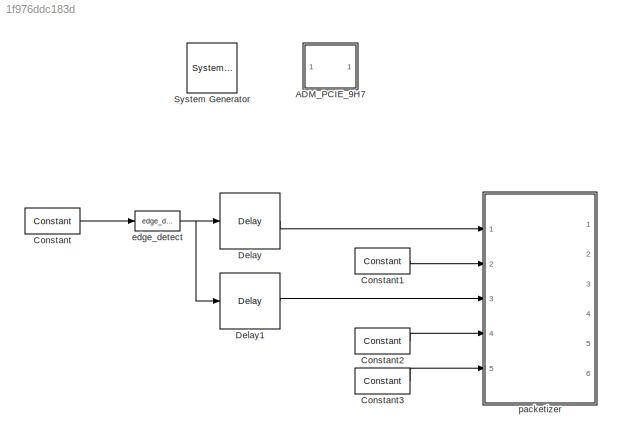
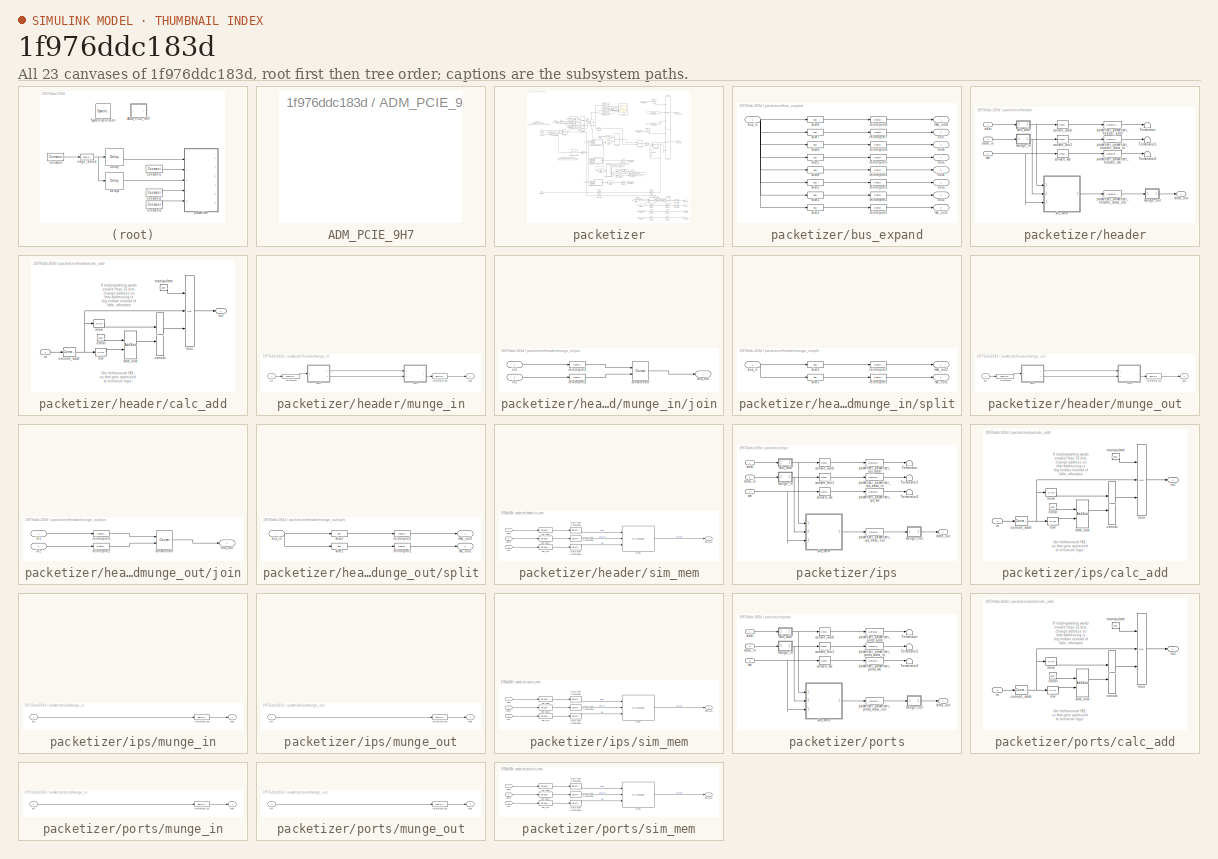
[diagram: thumbnail index - all 23 canvases of the model, root first then tree order]
MODEL slx_1f976ddc183d
KIND model
CONFIG AbsTol = auto
CONFIG EnableMultiTasking = off
CONFIG FixedStep = auto
CONFIG MaxStep = auto
CONFIG MinStep = auto
CONFIG RelTol = 1e-3
CONFIG SampleTimeConstraint = Unconstrained
CONFIG Solver = VariableStepAuto
CONFIG SolverName = VariableStepAuto
CONFIG StartTime = 0.0
CONFIG StopTime = 10000
BLOCK [Reference]  System Generator  REF=xbsIndex_r4/ System Generator
  AttributesFormatString = System\nGenerator
  Ports = []
  SourceBlock = xbsIndex_r4/ System Generator
  SourceType = Xilinx System Generator Block
  Tag = genX
  UserDataPersistent = on
BLOCK [SubSystem] ADM_PCIE_9H7
  Ports = []
  RequestExecContextInheritance = off
  Tag = xps:xsg
BLOCK [Reference] Constant  REF=xbsIndex_r4/Constant
  Ports = [0, 1]
  SourceBlock = xbsIndex_r4/Constant
  SourceType = Xilinx Constant Block Block
BLOCK [Reference] Constant1  REF=xbsIndex_r4/Constant
  Ports = [0, 1]
  SourceBlock = xbsIndex_r4/Constant
  SourceType = Xilinx Constant Block Block
BLOCK [Reference] Constant2  REF=xbsIndex_r4/Constant
  Ports = [0, 1]
  SourceBlock = xbsIndex_r4/Constant
  SourceType = Xilinx Constant Block Block
BLOCK [Reference] Constant3  REF=xbsIndex_r4/Constant
  Ports = [0, 1]
  SourceBlock = xbsIndex_r4/Constant
  SourceType = Xilinx Constant Block Block
BLOCK [Reference] Delay  REF=xbsIndex_r4/Delay
  Ports = [1, 1]
  SourceBlock = xbsIndex_r4/Delay
  SourceType = Xilinx Delay Block
BLOCK [Reference] Delay1  REF=xbsIndex_r4/Delay
  Ports = [1, 1]
  SourceBlock = xbsIndex_r4/Delay
  SourceType = Xilinx Delay Block
BLOCK [Reference] edge_detect  REF=casper_library_misc/edge_detect  (lib defined in mdl_357510c33b49, mdl_57b5f564ae26, +4 more)
  AttributesFormatString = rising edges\nactive high
  Ports = [1, 1]
  SourceBlock = casper_library_misc/edge_detect
  SourceProductName = CASPER DSP Blockset
  SourceType = edge_detect
  UserDataPersistent = on
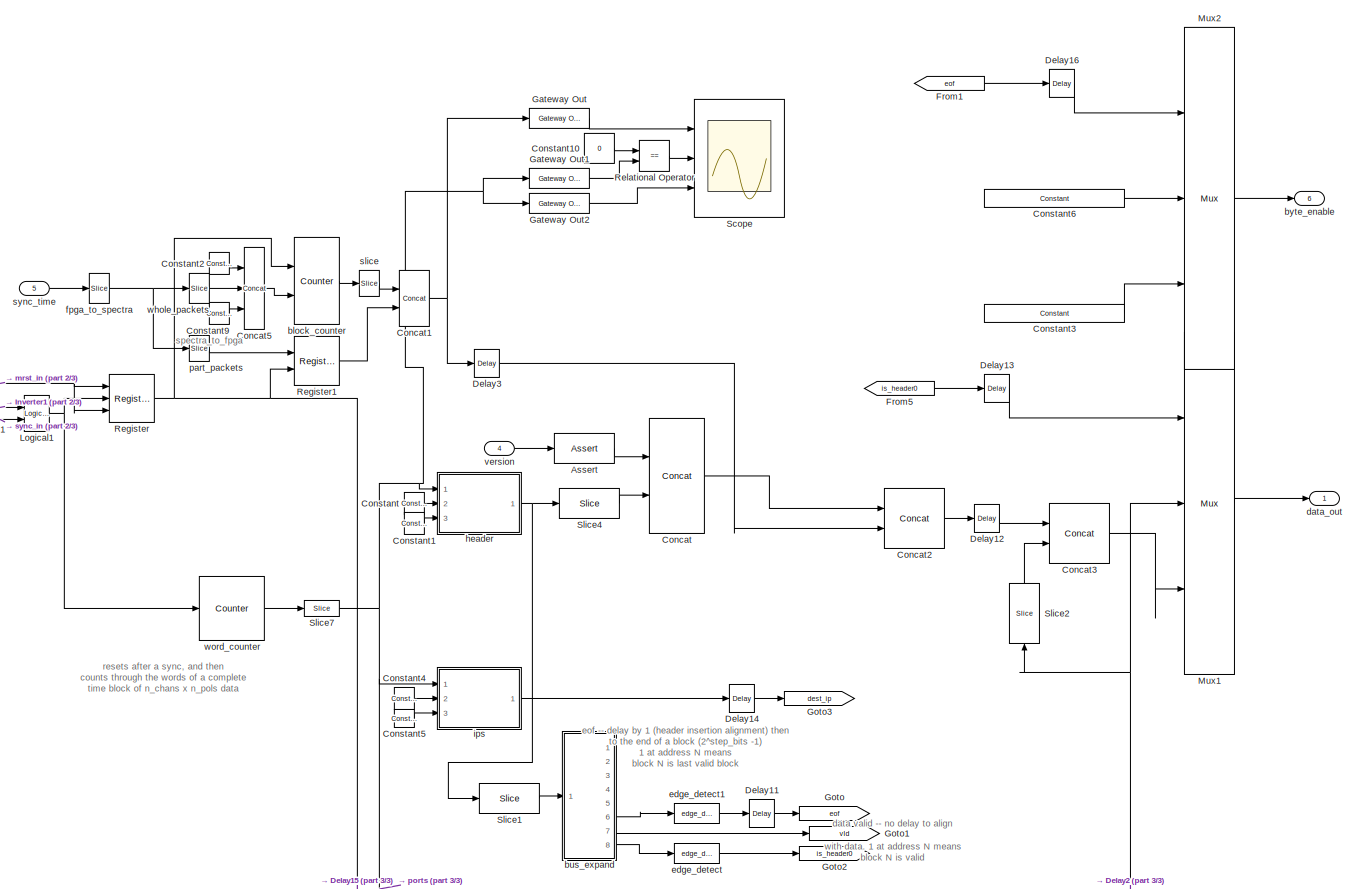
[diagram: packetizer - part 1/3, full width, middle band]
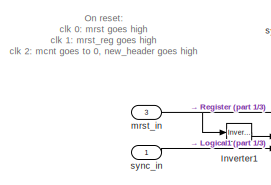
[diagram: packetizer - part 2/3, top left region]
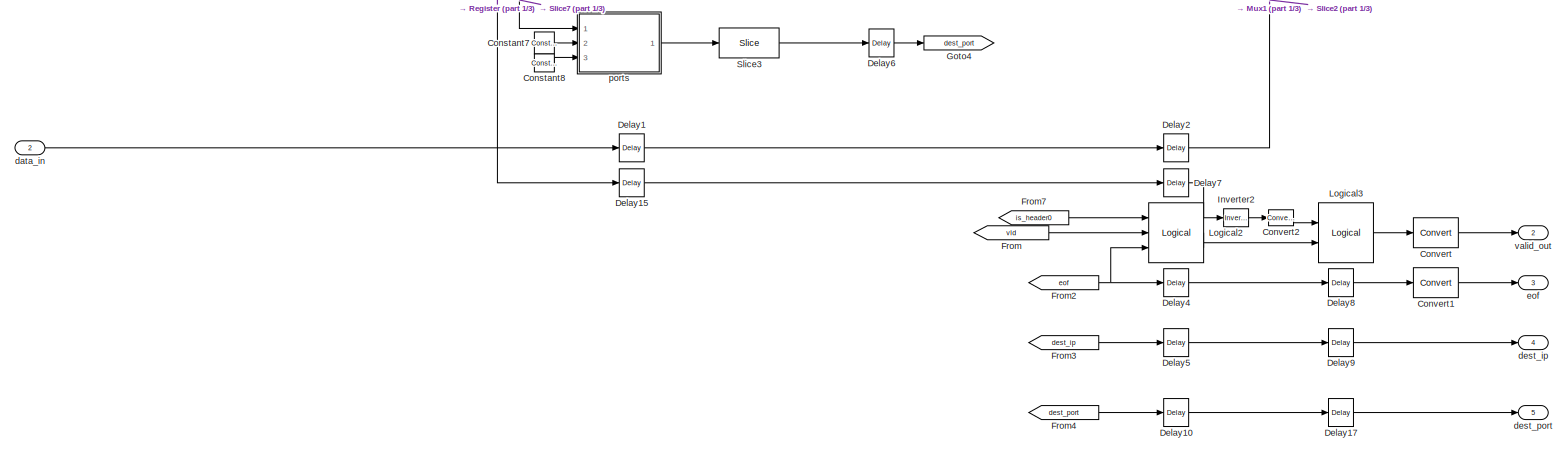
[diagram: packetizer - part 3/3, full width, bottom band]
BLOCK [SubSystem] packetizer
  Ports = [5, 6]
  RequestExecContextInheritance = off
BLOCK [Reference] packetizer/Assert  REF=xbsIndex_r4/Assert
  Ports = [1, 1]
  SourceBlock = xbsIndex_r4/Assert
  SourceType = Xilinx Assert Block
BLOCK [Reference] packetizer/Concat  REF=xbsIndex_r4/Concat
  Ports = [2, 1]
  SourceBlock = xbsIndex_r4/Concat
  SourceType = Xilinx Bus Concatenator Block
BLOCK [Reference] packetizer/Concat1  REF=xbsIndex_r4/Concat
  Ports = [2, 1]
  SourceBlock = xbsIndex_r4/Concat
  SourceType = Xilinx Bus Concatenator Block
BLOCK [Reference] packetizer/Concat2  REF=xbsIndex_r4/Concat
  Ports = [2, 1]
  SourceBlock = xbsIndex_r4/Concat
  SourceType = Xilinx Bus Concatenator Block
BLOCK [Reference] packetizer/Concat3  REF=xbsIndex_r4/Concat
  Ports = [2, 1]
  SourceBlock = xbsIndex_r4/Concat
  SourceType = Xilinx Bus Concatenator Block
BLOCK [Reference] packetizer/Concat5  REF=xbsIndex_r4/Concat
  Ports = [3, 1]
  SourceBlock = xbsIndex_r4/Concat
  SourceType = Xilinx Bus Concatenator Block
BLOCK [Reference] packetizer/Constant  REF=xbsIndex_r4/Constant
  Ports = [0, 1]
  SourceBlock = xbsIndex_r4/Constant
  SourceType = Xilinx Constant Block Block
BLOCK [Reference] packetizer/Constant1  REF=xbsIndex_r4/Constant
  Ports = [0, 1]
  SourceBlock = xbsIndex_r4/Constant
  SourceType = Xilinx Constant Block Block
BLOCK [Constant] packetizer/Constant10
  Value = 0
BLOCK [Reference] packetizer/Constant2  REF=xbsIndex_r4/Constant
  Ports = [0, 1]
  SourceBlock = xbsIndex_r4/Constant
  SourceType = Xilinx Constant Block Block
BLOCK [Reference] packetizer/Constant3  REF=xbsIndex_r4/Constant
  Ports = [0, 1]
  SourceBlock = xbsIndex_r4/Constant
  SourceType = Xilinx Constant Block Block
BLOCK [Reference] packetizer/Constant4  REF=xbsIndex_r4/Constant
  Ports = [0, 1]
  SourceBlock = xbsIndex_r4/Constant
  SourceType = Xilinx Constant Block Block
BLOCK [Reference] packetizer/Constant5  REF=xbsIndex_r4/Constant
  Ports = [0, 1]
  SourceBlock = xbsIndex_r4/Constant
  SourceType = Xilinx Constant Block Block
BLOCK [Reference] packetizer/Constant6  REF=xbsIndex_r4/Constant
  Ports = [0, 1]
  SourceBlock = xbsIndex_r4/Constant
  SourceType = Xilinx Constant Block Block
BLOCK [Reference] packetizer/Constant7  REF=xbsIndex_r4/Constant
  Ports = [0, 1]
  SourceBlock = xbsIndex_r4/Constant
  SourceType = Xilinx Constant Block Block
BLOCK [Reference] packetizer/Constant8  REF=xbsIndex_r4/Constant
  Ports = [0, 1]
  SourceBlock = xbsIndex_r4/Constant
  SourceType = Xilinx Constant Block Block
BLOCK [Reference] packetizer/Constant9  REF=xbsIndex_r4/Constant
  Ports = [0, 1]
  SourceBlock = xbsIndex_r4/Constant
  SourceType = Xilinx Constant Block Block
BLOCK [Reference] packetizer/Convert  REF=xbsIndex_r4/Convert
  Ports = [1, 1]
  SourceBlock = xbsIndex_r4/Convert
  SourceType = Xilinx Type Converter Block
BLOCK [Reference] packetizer/Convert1  REF=xbsIndex_r4/Convert
  Ports = [1, 1]
  SourceBlock = xbsIndex_r4/Convert
  SourceType = Xilinx Type Converter Block
BLOCK [Reference] packetizer/Convert2  REF=xbsIndex_r4/Convert
  Ports = [1, 1]
  SourceBlock = xbsIndex_r4/Convert
  SourceType = Xilinx Type Converter Block
BLOCK [Reference] packetizer/Delay1  REF=xbsIndex_r4/Delay
  Ports = [1, 1]
  SourceBlock = xbsIndex_r4/Delay
  SourceType = Xilinx Delay Block
BLOCK [Reference] packetizer/Delay10  REF=xbsIndex_r4/Delay
  Ports = [1, 1]
  SourceBlock = xbsIndex_r4/Delay
  SourceType = Xilinx Delay Block
BLOCK [Reference] packetizer/Delay11  REF=xbsIndex_r4/Delay
  Ports = [1, 1]
  SourceBlock = xbsIndex_r4/Delay
  SourceType = Xilinx Delay Block
BLOCK [Reference] packetizer/Delay12  REF=xbsIndex_r4/Delay
  Ports = [1, 1]
  SourceBlock = xbsIndex_r4/Delay
  SourceType = Xilinx Delay Block
BLOCK [Reference] packetizer/Delay13  REF=xbsIndex_r4/Delay
  Ports = [1, 1]
  SourceBlock = xbsIndex_r4/Delay
  SourceType = Xilinx Delay Block
BLOCK [Reference] packetizer/Delay14  REF=xbsIndex_r4/Delay
  Ports = [1, 1]
  SourceBlock = xbsIndex_r4/Delay
  SourceType = Xilinx Delay Block
BLOCK [Reference] packetizer/Delay15  REF=xbsIndex_r4/Delay
  Ports = [1, 1]
  SourceBlock = xbsIndex_r4/Delay
  SourceType = Xilinx Delay Block
BLOCK [Reference] packetizer/Delay16  REF=xbsIndex_r4/Delay
  Ports = [1, 1]
  SourceBlock = xbsIndex_r4/Delay
  SourceType = Xilinx Delay Block
BLOCK [Reference] packetizer/Delay17  REF=xbsIndex_r4/Delay
  Ports = [1, 1]
  SourceBlock = xbsIndex_r4/Delay
  SourceType = Xilinx Delay Block
BLOCK [Reference] packetizer/Delay2  REF=xbsIndex_r4/Delay
  Ports = [1, 1]
  SourceBlock = xbsIndex_r4/Delay
  SourceType = Xilinx Delay Block
BLOCK [Reference] packetizer/Delay3  REF=xbsIndex_r4/Delay
  Ports = [1, 1]
  SourceBlock = xbsIndex_r4/Delay
  SourceType = Xilinx Delay Block
BLOCK [Reference] packetizer/Delay4  REF=xbsIndex_r4/Delay
  Ports = [1, 1]
  SourceBlock = xbsIndex_r4/Delay
  SourceType = Xilinx Delay Block
BLOCK [Reference] packetizer/Delay5  REF=xbsIndex_r4/Delay
  Ports = [1, 1]
  SourceBlock = xbsIndex_r4/Delay
  SourceType = Xilinx Delay Block
BLOCK [Reference] packetizer/Delay6  REF=xbsIndex_r4/Delay
  Ports = [1, 1]
  SourceBlock = xbsIndex_r4/Delay
  SourceType = Xilinx Delay Block
BLOCK [Reference] packetizer/Delay7  REF=xbsIndex_r4/Delay
  Ports = [1, 1]
  SourceBlock = xbsIndex_r4/Delay
  SourceType = Xilinx Delay Block
BLOCK [Reference] packetizer/Delay8  REF=xbsIndex_r4/Delay
  Ports = [1, 1]
  SourceBlock = xbsIndex_r4/Delay
  SourceType = Xilinx Delay Block
BLOCK [Reference] packetizer/Delay9  REF=xbsIndex_r4/Delay
  Ports = [1, 1]
  SourceBlock = xbsIndex_r4/Delay
  SourceType = Xilinx Delay Block
BLOCK [From] packetizer/From
  GotoTag = vld
BLOCK [From] packetizer/From1
  GotoTag = eof
BLOCK [From] packetizer/From2
  GotoTag = eof
BLOCK [From] packetizer/From3
  GotoTag = dest_ip
BLOCK [From] packetizer/From4
  GotoTag = dest_port
BLOCK [From] packetizer/From5
  GotoTag = is_header0
BLOCK [From] packetizer/From7
  GotoTag = is_header0
BLOCK [Reference] packetizer/Gateway Out  REF=xbsIndex_r4/Gateway Out
  Ports = [1, 1]
  SourceBlock = xbsIndex_r4/Gateway Out
  SourceType = Xilinx Gateway Out Block
BLOCK [Reference] packetizer/Gateway Out1  REF=xbsIndex_r4/Gateway Out
  Ports = [1, 1]
  SourceBlock = xbsIndex_r4/Gateway Out
  SourceType = Xilinx Gateway Out Block
BLOCK [Reference] packetizer/Gateway Out2  REF=xbsIndex_r4/Gateway Out
  Ports = [1, 1]
  SourceBlock = xbsIndex_r4/Gateway Out
  SourceType = Xilinx Gateway Out Block
BLOCK [Goto] packetizer/Goto
  GotoTag = eof
BLOCK [Goto] packetizer/Goto1
  GotoTag = vld
BLOCK [Goto] packetizer/Goto2
  GotoTag = is_header0
BLOCK [Goto] packetizer/Goto3
  GotoTag = dest_ip
BLOCK [Goto] packetizer/Goto4
  GotoTag = dest_port
BLOCK [Reference] packetizer/Inverter1  REF=xbsIndex_r4/Inverter
  Ports = [1, 1]
  SourceBlock = xbsIndex_r4/Inverter
  SourceType = Xilinx Inverter Block
BLOCK [Reference] packetizer/Inverter2  REF=xbsIndex_r4/Inverter
  Ports = [1, 1]
  SourceBlock = xbsIndex_r4/Inverter
  SourceType = Xilinx Inverter Block
BLOCK [Reference] packetizer/Logical1  REF=xbsIndex_r4/Logical
  Ports = [2, 1]
  SourceBlock = xbsIndex_r4/Logical
  SourceType = Xilinx Logical Block Block
BLOCK [Reference] packetizer/Logical2  REF=xbsIndex_r4/Logical
  Ports = [3, 1]
  SourceBlock = xbsIndex_r4/Logical
  SourceType = Xilinx Logical Block Block
BLOCK [Reference] packetizer/Logical3  REF=xbsIndex_r4/Logical
  Ports = [2, 1]
  SourceBlock = xbsIndex_r4/Logical
  SourceType = Xilinx Logical Block Block
BLOCK [Reference] packetizer/Mux1  REF=xbsIndex_r4/Mux
  Ports = [3, 1]
  SourceBlock = xbsIndex_r4/Mux
  SourceType = Xilinx Bus Multiplexer Block
BLOCK [Reference] packetizer/Mux2  REF=xbsIndex_r4/Mux
  Ports = [3, 1]
  SourceBlock = xbsIndex_r4/Mux
  SourceType = Xilinx Bus Multiplexer Block
BLOCK [Reference] packetizer/Register  REF=xbsIndex_r4/Register
  Ports = [3, 1]
  SourceBlock = xbsIndex_r4/Register
  SourceType = Xilinx Register Block
BLOCK [Reference] packetizer/Register1  REF=xbsIndex_r4/Register
  Ports = [2, 1]
  SourceBlock = xbsIndex_r4/Register
  SourceType = Xilinx Register Block
BLOCK [RelationalOperator] packetizer/Relational Operator
  InputSameDT = off
  Operator = ==
  OutDataTypeStr = boolean
  Ports = [2, 1]
  RndMeth = Simplest
  ZeroCross = off
BLOCK [Scope] packetizer/Scope
  Floating = off
  NumInputPorts = 3
  Ports = [3]
  ScopeSpecificationString = Simulink.scopes.TimeScopeBlockCfg('CurrentConfiguration', extmgr.ConfigurationSet(extmgr.Configuration('Core','General UI',true),extmgr.Configuration('Core','Source UI',true),extmgr.Configuration('Sources','WiredSimulink',true),extmgr.Configuration('Visuals','Time Domain',true,'SerializedDisplays',{struct('MinYLimReal','-10.00000','MaxYLimReal','90.00000','YLabelReal','','MinYLimMag','0.00000','Ma...<+2796ch>
BLOCK [Reference] packetizer/Slice1  REF=xbsIndex_r4/Slice
  Ports = [1, 1]
  SourceBlock = xbsIndex_r4/Slice
  SourceType = Xilinx Bit Slice Extractor Block
BLOCK [Reference] packetizer/Slice2  REF=xbsIndex_r4/Slice
  Ports = [1, 1]
  SourceBlock = xbsIndex_r4/Slice
  SourceType = Xilinx Bit Slice Extractor Block
BLOCK [Reference] packetizer/Slice3  REF=xbsIndex_r4/Slice
  Ports = [1, 1]
  SourceBlock = xbsIndex_r4/Slice
  SourceType = Xilinx Bit Slice Extractor Block
BLOCK [Reference] packetizer/Slice4  REF=xbsIndex_r4/Slice
  Ports = [1, 1]
  SourceBlock = xbsIndex_r4/Slice
  SourceType = Xilinx Bit Slice Extractor Block
BLOCK [Reference] packetizer/Slice7  REF=xbsIndex_r4/Slice
  Ports = [1, 1]
  SourceBlock = xbsIndex_r4/Slice
  SourceType = Xilinx Bit Slice Extractor Block
BLOCK [Reference] packetizer/block_counter  REF=xbsIndex_r4/Counter
  Ports = [2, 1]
  SourceBlock = xbsIndex_r4/Counter
  SourceType = Xilinx Counter Block
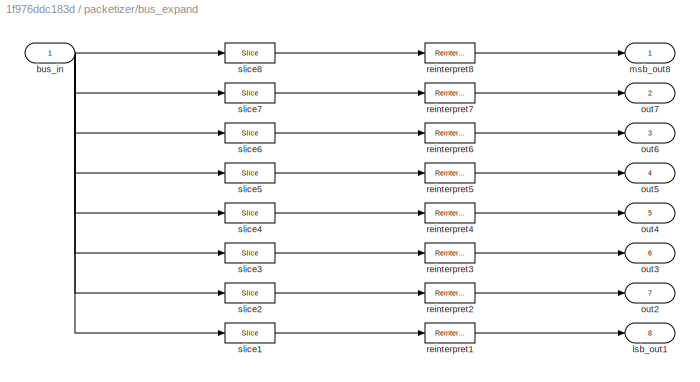
BLOCK [SubSystem] packetizer/bus_expand
  AncestorBlock = casper_library_flow_control/bus_expand
  AttributesFormatString = 8 outputs
  Ports = [1, 8]
  RequestExecContextInheritance = off
  UserDataPersistent = on
BLOCK [Inport] packetizer/bus_expand/bus_in
  IconDisplay = Port number
BLOCK [Outport] packetizer/bus_expand/lsb_out1
  IconDisplay = Port number
  Port = 8
BLOCK [Outport] packetizer/bus_expand/msb_out8
  IconDisplay = Port number
BLOCK [Outport] packetizer/bus_expand/out2
  IconDisplay = Port number
  Port = 7
BLOCK [Outport] packetizer/bus_expand/out3
  IconDisplay = Port number
  Port = 6
BLOCK [Outport] packetizer/bus_expand/out4
  IconDisplay = Port number
  Port = 5
BLOCK [Outport] packetizer/bus_expand/out5
  IconDisplay = Port number
  Port = 4
BLOCK [Outport] packetizer/bus_expand/out6
  IconDisplay = Port number
  Port = 3
BLOCK [Outport] packetizer/bus_expand/out7
  IconDisplay = Port number
  Port = 2
BLOCK [Reference] packetizer/bus_expand/reinterpret1  REF=xbsIndex_r4/Reinterpret
  Ports = [1, 1]
  SourceBlock = xbsIndex_r4/Reinterpret
  SourceType = Xilinx Type Reinterpreter Block
BLOCK [Reference] packetizer/bus_expand/reinterpret2  REF=xbsIndex_r4/Reinterpret
  Ports = [1, 1]
  SourceBlock = xbsIndex_r4/Reinterpret
  SourceType = Xilinx Type Reinterpreter Block
BLOCK [Reference] packetizer/bus_expand/reinterpret3  REF=xbsIndex_r4/Reinterpret
  Ports = [1, 1]
  SourceBlock = xbsIndex_r4/Reinterpret
  SourceType = Xilinx Type Reinterpreter Block
BLOCK [Reference] packetizer/bus_expand/reinterpret4  REF=xbsIndex_r4/Reinterpret
  Ports = [1, 1]
  SourceBlock = xbsIndex_r4/Reinterpret
  SourceType = Xilinx Type Reinterpreter Block
BLOCK [Reference] packetizer/bus_expand/reinterpret5  REF=xbsIndex_r4/Reinterpret
  Ports = [1, 1]
  SourceBlock = xbsIndex_r4/Reinterpret
  SourceType = Xilinx Type Reinterpreter Block
BLOCK [Reference] packetizer/bus_expand/reinterpret6  REF=xbsIndex_r4/Reinterpret
  Ports = [1, 1]
  SourceBlock = xbsIndex_r4/Reinterpret
  SourceType = Xilinx Type Reinterpreter Block
BLOCK [Reference] packetizer/bus_expand/reinterpret7  REF=xbsIndex_r4/Reinterpret
  Ports = [1, 1]
  SourceBlock = xbsIndex_r4/Reinterpret
  SourceType = Xilinx Type Reinterpreter Block
BLOCK [Reference] packetizer/bus_expand/reinterpret8  REF=xbsIndex_r4/Reinterpret
  Ports = [1, 1]
  SourceBlock = xbsIndex_r4/Reinterpret
  SourceType = Xilinx Type Reinterpreter Block
BLOCK [Reference] packetizer/bus_expand/slice1  REF=xbsIndex_r4/Slice
  Ports = [1, 1]
  SourceBlock = xbsIndex_r4/Slice
  SourceType = Xilinx Bit Slice Extractor Block
BLOCK [Reference] packetizer/bus_expand/slice2  REF=xbsIndex_r4/Slice
  Ports = [1, 1]
  SourceBlock = xbsIndex_r4/Slice
  SourceType = Xilinx Bit Slice Extractor Block
BLOCK [Reference] packetizer/bus_expand/slice3  REF=xbsIndex_r4/Slice
  Ports = [1, 1]
  SourceBlock = xbsIndex_r4/Slice
  SourceType = Xilinx Bit Slice Extractor Block
BLOCK [Reference] packetizer/bus_expand/slice4  REF=xbsIndex_r4/Slice
  Ports = [1, 1]
  SourceBlock = xbsIndex_r4/Slice
  SourceType = Xilinx Bit Slice Extractor Block
BLOCK [Reference] packetizer/bus_expand/slice5  REF=xbsIndex_r4/Slice
  Ports = [1, 1]
  SourceBlock = xbsIndex_r4/Slice
  SourceType = Xilinx Bit Slice Extractor Block
BLOCK [Reference] packetizer/bus_expand/slice6  REF=xbsIndex_r4/Slice
  Ports = [1, 1]
  SourceBlock = xbsIndex_r4/Slice
  SourceType = Xilinx Bit Slice Extractor Block
BLOCK [Reference] packetizer/bus_expand/slice7  REF=xbsIndex_r4/Slice
  Ports = [1, 1]
  SourceBlock = xbsIndex_r4/Slice
  SourceType = Xilinx Bit Slice Extractor Block
BLOCK [Reference] packetizer/bus_expand/slice8  REF=xbsIndex_r4/Slice
  Ports = [1, 1]
  SourceBlock = xbsIndex_r4/Slice
  SourceType = Xilinx Bit Slice Extractor Block
BLOCK [Outport] packetizer/byte_enable
  IconDisplay = Port number
  Port = 6
BLOCK [Inport] packetizer/data_in
  IconDisplay = Port number
  Port = 2
BLOCK [Outport] packetizer/data_out
  IconDisplay = Port number
BLOCK [Outport] packetizer/dest_ip
  IconDisplay = Port number
  Port = 4
BLOCK [Outport] packetizer/dest_port
  IconDisplay = Port number
  Port = 5
BLOCK [Reference] packetizer/edge_detect  REF=casper_library_misc/edge_detect  (lib defined in mdl_357510c33b49, mdl_57b5f564ae26, +4 more)
  AttributesFormatString = rising edges\nactive high
  Ports = [1, 1]
  SourceBlock = casper_library_misc/edge_detect
  SourceProductName = CASPER DSP Blockset
  SourceType = edge_detect
  UserDataPersistent = on
BLOCK [Reference] packetizer/edge_detect1  REF=casper_library_misc/edge_detect  (lib defined in mdl_357510c33b49, mdl_57b5f564ae26, +4 more)
  AttributesFormatString = rising edges\nactive high
  Ports = [1, 1]
  SourceBlock = casper_library_misc/edge_detect
  SourceProductName = CASPER DSP Blockset
  SourceType = edge_detect
  UserDataPersistent = on
BLOCK [Outport] packetizer/eof
  IconDisplay = Port number
  Port = 3
BLOCK [Reference] packetizer/fpga_to_spectra  REF=xbsIndex_r4/Slice
  Ports = [1, 1]
  SourceBlock = xbsIndex_r4/Slice
  SourceType = Xilinx Bit Slice Extractor Block
BLOCK [SubSystem] packetizer/header
  AncestorBlock = xps_library/Memory/shared_bram
  Ports = [3, 1]
  RequestExecContextInheritance = off
  Tag = xps:bram
BLOCK [Terminator] packetizer/header/Terminator
BLOCK [Terminator] packetizer/header/Terminator1
BLOCK [Terminator] packetizer/header/Terminator2
BLOCK [Inport] packetizer/header/addr
  IconDisplay = Port number
BLOCK [SubSystem] packetizer/header/calc_add
  Ports = [1, 1]
  RequestExecContextInheritance = off
BLOCK [Reference] packetizer/header/calc_add/add_sub  REF=xbsIndex_r4/AddSub
  Ports = [2, 1]
  SourceBlock = xbsIndex_r4/AddSub
  SourceType = Xilinx Adder/Subtracter Block
BLOCK [Reference] packetizer/header/calc_add/concat  REF=xbsIndex_r4/Concat
  Ports = [2, 1]
  SourceBlock = xbsIndex_r4/Concat
  SourceType = Xilinx Bus Concatenator Block
BLOCK [Reference] packetizer/header/calc_add/const  REF=xbsIndex_r4/Constant
  Ports = [0, 1]
  SourceBlock = xbsIndex_r4/Constant
  SourceType = Xilinx Constant Block Block
BLOCK [Reference] packetizer/header/calc_add/convert_addr  REF=xbsIndex_r4/Convert
  Ports = [1, 1]
  SourceBlock = xbsIndex_r4/Convert
  SourceType = Xilinx Type Converter Block
BLOCK [Inport] packetizer/header/calc_add/in
  IconDisplay = Port number
BLOCK [Reference] packetizer/header/calc_add/lsw  REF=xbsIndex_r4/Slice
  Ports = [1, 1]
  SourceBlock = xbsIndex_r4/Slice
  SourceType = Xilinx Bit Slice Extractor Block
BLOCK [Reference] packetizer/header/calc_add/manipulate  REF=xbsIndex_r4/Constant
  Ports = [0, 1]
  SourceBlock = xbsIndex_r4/Constant
  SourceType = Xilinx Constant Block Block
BLOCK [Reference] packetizer/header/calc_add/msw  REF=xbsIndex_r4/Slice
  Ports = [1, 1]
  SourceBlock = xbsIndex_r4/Slice
  SourceType = Xilinx Bit Slice Extractor Block
BLOCK [Reference] packetizer/header/calc_add/mux  REF=xbsIndex_r4/Mux
  Ports = [3, 1]
  SourceBlock = xbsIndex_r4/Mux
  SourceType = Xilinx Bus Multiplexer Block
BLOCK [Outport] packetizer/header/calc_add/out
  IconDisplay = Port number
BLOCK [Reference] packetizer/header/convert_addr  REF=xbsIndex_r4/Convert
  Ports = [1, 1]
  SourceBlock = xbsIndex_r4/Convert
  SourceType = Xilinx Type Converter Block
BLOCK [Reference] packetizer/header/convert_din1  REF=xbsIndex_r4/Convert
  Ports = [1, 1]
  SourceBlock = xbsIndex_r4/Convert
  SourceType = Xilinx Type Converter Block
BLOCK [Reference] packetizer/header/convert_we  REF=xbsIndex_r4/Convert
  Ports = [1, 1]
  SourceBlock = xbsIndex_r4/Convert
  SourceType = Xilinx Type Converter Block
BLOCK [Inport] packetizer/header/data_in
  IconDisplay = Port number
  Port = 2
BLOCK [Outport] packetizer/header/data_out
  IconDisplay = Port number
BLOCK [SubSystem] packetizer/header/munge_in
  AncestorBlock = casper_library_flow_control/munge
  AttributesFormatString = split:[32 32]\njoin:[1 0]\nUnsigned [64,0]
  Ports = [1, 1]
  RequestExecContextInheritance = off
  UserDataPersistent = on
BLOCK [Inport] packetizer/header/munge_in/din
  IconDisplay = Port number
BLOCK [Outport] packetizer/header/munge_in/dout
  IconDisplay = Port number
BLOCK [SubSystem] packetizer/header/munge_in/join
  AncestorBlock = casper_library_flow_control/bus_create
  Ports = [2, 1]
  RequestExecContextInheritance = off
  UserDataPersistent = on
BLOCK [Outport] packetizer/header/munge_in/join/bus_out
  IconDisplay = Port number
BLOCK [Reference] packetizer/header/munge_in/join/concatenate  REF=xbsIndex_r4/Concat
  Ports = [2, 1]
  SourceBlock = xbsIndex_r4/Concat
  SourceType = Xilinx Bus Concatenator Block
BLOCK [Inport] packetizer/header/munge_in/join/in1
  IconDisplay = Port number
BLOCK [Inport] packetizer/header/munge_in/join/in2
  IconDisplay = Port number
  Port = 2
BLOCK [Reference] packetizer/header/munge_in/join/reinterpret1  REF=xbsIndex_r4/Reinterpret
  Ports = [1, 1]
  SourceBlock = xbsIndex_r4/Reinterpret
  SourceType = Xilinx Type Reinterpreter Block
BLOCK [Reference] packetizer/header/munge_in/join/reinterpret2  REF=xbsIndex_r4/Reinterpret
  Ports = [1, 1]
  SourceBlock = xbsIndex_r4/Reinterpret
  SourceType = Xilinx Type Reinterpreter Block
BLOCK [Reference] packetizer/header/munge_in/reinterpret  REF=xbsIndex_r4/Reinterpret
  Ports = [1, 1]
  SourceBlock = xbsIndex_r4/Reinterpret
  SourceType = Xilinx Type Reinterpreter Block
BLOCK [Reference] packetizer/header/munge_in/reinterpret_out  REF=xbsIndex_r4/Reinterpret
  Ports = [1, 1]
  SourceBlock = xbsIndex_r4/Reinterpret
  SourceType = Xilinx Type Reinterpreter Block
BLOCK [SubSystem] packetizer/header/munge_in/split
  AncestorBlock = casper_library_flow_control/bus_expand
  AttributesFormatString = 2 outputs
  Ports = [1, 2]
  RequestExecContextInheritance = off
  UserDataPersistent = on
BLOCK [Inport] packetizer/header/munge_in/split/bus_in
  IconDisplay = Port number
BLOCK [Outport] packetizer/header/munge_in/split/lsb_out1
  IconDisplay = Port number
  Port = 2
BLOCK [Outport] packetizer/header/munge_in/split/msb_out2
  IconDisplay = Port number
BLOCK [Reference] packetizer/header/munge_in/split/reinterpret1  REF=xbsIndex_r4/Reinterpret
  Ports = [1, 1]
  SourceBlock = xbsIndex_r4/Reinterpret
  SourceType = Xilinx Type Reinterpreter Block
BLOCK [Reference] packetizer/header/munge_in/split/reinterpret2  REF=xbsIndex_r4/Reinterpret
  Ports = [1, 1]
  SourceBlock = xbsIndex_r4/Reinterpret
  SourceType = Xilinx Type Reinterpreter Block
BLOCK [Reference] packetizer/header/munge_in/split/slice1  REF=xbsIndex_r4/Slice
  Ports = [1, 1]
  SourceBlock = xbsIndex_r4/Slice
  SourceType = Xilinx Bit Slice Extractor Block
BLOCK [Reference] packetizer/header/munge_in/split/slice2  REF=xbsIndex_r4/Slice
  Ports = [1, 1]
  SourceBlock = xbsIndex_r4/Slice
  SourceType = Xilinx Bit Slice Extractor Block
BLOCK [SubSystem] packetizer/header/munge_out
  AncestorBlock = casper_library_flow_control/munge
  AttributesFormatString = split:[32 32]\njoin:[1 0]\nUnsigned [64,0]
  Ports = [1, 1]
  RequestExecContextInheritance = off
  UserDataPersistent = on
BLOCK [Inport] packetizer/header/munge_out/din
  IconDisplay = Port number
BLOCK [Outport] packetizer/header/munge_out/dout
  IconDisplay = Port number
BLOCK [SubSystem] packetizer/header/munge_out/join
  AncestorBlock = casper_library_flow_control/bus_create
  Ports = [2, 1]
  RequestExecContextInheritance = off
  UserDataPersistent = on
BLOCK [Outport] packetizer/header/munge_out/join/bus_out
  IconDisplay = Port number
BLOCK [Reference] packetizer/header/munge_out/join/concatenate  REF=xbsIndex_r4/Concat
  Ports = [2, 1]
  SourceBlock = xbsIndex_r4/Concat
  SourceType = Xilinx Bus Concatenator Block
BLOCK [Inport] packetizer/header/munge_out/join/in1
  IconDisplay = Port number
BLOCK [Inport] packetizer/header/munge_out/join/in2
  IconDisplay = Port number
  Port = 2
BLOCK [Reference] packetizer/header/munge_out/join/reinterpret1  REF=xbsIndex_r4/Reinterpret
  Ports = [1, 1]
  SourceBlock = xbsIndex_r4/Reinterpret
  SourceType = Xilinx Type Reinterpreter Block
BLOCK [Reference] packetizer/header/munge_out/join/reinterpret2  REF=xbsIndex_r4/Reinterpret
  Ports = [1, 1]
  SourceBlock = xbsIndex_r4/Reinterpret
  SourceType = Xilinx Type Reinterpreter Block
BLOCK [Reference] packetizer/header/munge_out/reinterpret  REF=xbsIndex_r4/Reinterpret
  Ports = [1, 1]
  SourceBlock = xbsIndex_r4/Reinterpret
  SourceType = Xilinx Type Reinterpreter Block
BLOCK [Reference] packetizer/header/munge_out/reinterpret_out  REF=xbsIndex_r4/Reinterpret
  Ports = [1, 1]
  SourceBlock = xbsIndex_r4/Reinterpret
  SourceType = Xilinx Type Reinterpreter Block
BLOCK [SubSystem] packetizer/header/munge_out/split
  AncestorBlock = casper_library_flow_control/bus_expand
  AttributesFormatString = 2 outputs
  Ports = [1, 2]
  RequestExecContextInheritance = off
  UserDataPersistent = on
BLOCK [Inport] packetizer/header/munge_out/split/bus_in
  IconDisplay = Port number
BLOCK [Outport] packetizer/header/munge_out/split/lsb_out1
  IconDisplay = Port number
  Port = 2
BLOCK [Outport] packetizer/header/munge_out/split/msb_out2
  IconDisplay = Port number
BLOCK [Reference] packetizer/header/munge_out/split/reinterpret1  REF=xbsIndex_r4/Reinterpret
  Ports = [1, 1]
  SourceBlock = xbsIndex_r4/Reinterpret
  SourceType = Xilinx Type Reinterpreter Block
BLOCK [Reference] packetizer/header/munge_out/split/reinterpret2  REF=xbsIndex_r4/Reinterpret
  Ports = [1, 1]
  SourceBlock = xbsIndex_r4/Reinterpret
  SourceType = Xilinx Type Reinterpreter Block
BLOCK [Reference] packetizer/header/munge_out/split/slice1  REF=xbsIndex_r4/Slice
  Ports = [1, 1]
  SourceBlock = xbsIndex_r4/Slice
  SourceType = Xilinx Bit Slice Extractor Block
BLOCK [Reference] packetizer/header/munge_out/split/slice2  REF=xbsIndex_r4/Slice
  Ports = [1, 1]
  SourceBlock = xbsIndex_r4/Slice
  SourceType = Xilinx Bit Slice Extractor Block
BLOCK [Reference] packetizer/header/packetizer_packetizer_header_addr  REF=xbsIndex_r4/Gateway Out
  Ports = [1, 1]
  SourceBlock = xbsIndex_r4/Gateway Out
  SourceType = Xilinx Gateway Out Block
BLOCK [Reference] packetizer/header/packetizer_packetizer_header_data_in  REF=xbsIndex_r4/Gateway Out
  Ports = [1, 1]
  SourceBlock = xbsIndex_r4/Gateway Out
  SourceType = Xilinx Gateway Out Block
BLOCK [Reference] packetizer/header/packetizer_packetizer_header_data_out  REF=xbsIndex_r4/Gateway In
  Ports = [1, 1]
  SourceBlock = xbsIndex_r4/Gateway In
  SourceType = Xilinx Gateway In Block
BLOCK [Reference] packetizer/header/packetizer_packetizer_header_we  REF=xbsIndex_r4/Gateway Out
  Ports = [1, 1]
  SourceBlock = xbsIndex_r4/Gateway Out
  SourceType = Xilinx Gateway Out Block
BLOCK [SubSystem] packetizer/header/sim_mem
  Ports = [3, 1]
  RequestExecContextInheritance = off
BLOCK [DataTypeConversion] packetizer/header/sim_mem/Data Type Conversion
  OutDataTypeStr = single
  RndMeth = Floor
  SaturateOnIntegerOverflow = off
BLOCK [DataTypeConversion] packetizer/header/sim_mem/Data Type Conversion1
  OutDataTypeStr = double
  RndMeth = Floor
  SaturateOnIntegerOverflow = off
BLOCK [DataTypeConversion] packetizer/header/sim_mem/Data Type Conversion2
  OutDataTypeStr = boolean
  RndMeth = Floor
  SaturateOnIntegerOverflow = off
BLOCK [Inport] packetizer/header/sim_mem/addr
  IconDisplay = Port number
BLOCK [Inport] packetizer/header/sim_mem/data
  IconDisplay = Port number
  Port = 2
BLOCK [Outport] packetizer/header/sim_mem/data_out
  IconDisplay = Port number
BLOCK [M-S-Function] packetizer/header/sim_mem/sfunc
  FunctionName = shared_bram_sim_sfunc
  Parameters = depth_bits, latency, init_vals
  Ports = [3, 1]
BLOCK [Reference] packetizer/header/sim_mem/sim_addr  REF=xbsIndex_r4/Gateway Out
  Ports = [1, 1]
  SourceBlock = xbsIndex_r4/Gateway Out
  SourceType = Xilinx Gateway Out Block
BLOCK [Reference] packetizer/header/sim_mem/sim_data  REF=xbsIndex_r4/Gateway Out
  Ports = [1, 1]
  SourceBlock = xbsIndex_r4/Gateway Out
  SourceType = Xilinx Gateway Out Block
BLOCK [Reference] packetizer/header/sim_mem/sim_we  REF=xbsIndex_r4/Gateway Out
  Ports = [1, 1]
  SourceBlock = xbsIndex_r4/Gateway Out
  SourceType = Xilinx Gateway Out Block
BLOCK [Inport] packetizer/header/sim_mem/we
  IconDisplay = Port number
  Port = 3
BLOCK [Inport] packetizer/header/we
  IconDisplay = Port number
  Port = 3
BLOCK [SubSystem] packetizer/ips
  AncestorBlock = xps_library/Memory/shared_bram
  Ports = [3, 1]
  RequestExecContextInheritance = off
  Tag = xps:bram
BLOCK [Terminator] packetizer/ips/Terminator
BLOCK [Terminator] packetizer/ips/Terminator1
BLOCK [Terminator] packetizer/ips/Terminator2
BLOCK [Inport] packetizer/ips/addr
  IconDisplay = Port number
BLOCK [SubSystem] packetizer/ips/calc_add
  Ports = [1, 1]
  RequestExecContextInheritance = off
BLOCK [Reference] packetizer/ips/calc_add/add_sub  REF=xbsIndex_r4/AddSub
  Ports = [2, 1]
  SourceBlock = xbsIndex_r4/AddSub
  SourceType = Xilinx Adder/Subtracter Block
BLOCK [Reference] packetizer/ips/calc_add/concat  REF=xbsIndex_r4/Concat
  Ports = [2, 1]
  SourceBlock = xbsIndex_r4/Concat
  SourceType = Xilinx Bus Concatenator Block
BLOCK [Reference] packetizer/ips/calc_add/const  REF=xbsIndex_r4/Constant
  Ports = [0, 1]
  SourceBlock = xbsIndex_r4/Constant
  SourceType = Xilinx Constant Block Block
BLOCK [Reference] packetizer/ips/calc_add/convert_addr  REF=xbsIndex_r4/Convert
  Ports = [1, 1]
  SourceBlock = xbsIndex_r4/Convert
  SourceType = Xilinx Type Converter Block
BLOCK [Inport] packetizer/ips/calc_add/in
  IconDisplay = Port number
BLOCK [Reference] packetizer/ips/calc_add/lsw  REF=xbsIndex_r4/Slice
  Ports = [1, 1]
  SourceBlock = xbsIndex_r4/Slice
  SourceType = Xilinx Bit Slice Extractor Block
BLOCK [Reference] packetizer/ips/calc_add/manipulate  REF=xbsIndex_r4/Constant
  Ports = [0, 1]
  SourceBlock = xbsIndex_r4/Constant
  SourceType = Xilinx Constant Block Block
BLOCK [Reference] packetizer/ips/calc_add/msw  REF=xbsIndex_r4/Slice
  Ports = [1, 1]
  SourceBlock = xbsIndex_r4/Slice
  SourceType = Xilinx Bit Slice Extractor Block
BLOCK [Reference] packetizer/ips/calc_add/mux  REF=xbsIndex_r4/Mux
  Ports = [3, 1]
  SourceBlock = xbsIndex_r4/Mux
  SourceType = Xilinx Bus Multiplexer Block
BLOCK [Outport] packetizer/ips/calc_add/out
  IconDisplay = Port number
BLOCK [Reference] packetizer/ips/convert_addr  REF=xbsIndex_r4/Convert
  Ports = [1, 1]
  SourceBlock = xbsIndex_r4/Convert
  SourceType = Xilinx Type Converter Block
BLOCK [Reference] packetizer/ips/convert_din1  REF=xbsIndex_r4/Convert
  Ports = [1, 1]
  SourceBlock = xbsIndex_r4/Convert
  SourceType = Xilinx Type Converter Block
BLOCK [Reference] packetizer/ips/convert_we  REF=xbsIndex_r4/Convert
  Ports = [1, 1]
  SourceBlock = xbsIndex_r4/Convert
  SourceType = Xilinx Type Converter Block
BLOCK [Inport] packetizer/ips/data_in
  IconDisplay = Port number
  Port = 2
BLOCK [Outport] packetizer/ips/data_out
  IconDisplay = Port number
BLOCK [SubSystem] packetizer/ips/munge_in
  AncestorBlock = casper_library_flow_control/munge
  AttributesFormatString = split:32\njoin:0\nUnsigned [32,0]
  Ports = [1, 1]
  RequestExecContextInheritance = off
  UserDataPersistent = on
BLOCK [Inport] packetizer/ips/munge_in/din
  IconDisplay = Port number
BLOCK [Outport] packetizer/ips/munge_in/dout
  IconDisplay = Port number
BLOCK [Reference] packetizer/ips/munge_in/reinterpret_out  REF=xbsIndex_r4/Reinterpret
  Ports = [1, 1]
  SourceBlock = xbsIndex_r4/Reinterpret
  SourceType = Xilinx Type Reinterpreter Block
BLOCK [SubSystem] packetizer/ips/munge_out
  AncestorBlock = casper_library_flow_control/munge
  AttributesFormatString = split:32\njoin:0\nUnsigned [32,0]
  Ports = [1, 1]
  RequestExecContextInheritance = off
  UserDataPersistent = on
BLOCK [Inport] packetizer/ips/munge_out/din
  IconDisplay = Port number
BLOCK [Outport] packetizer/ips/munge_out/dout
  IconDisplay = Port number
BLOCK [Reference] packetizer/ips/munge_out/reinterpret_out  REF=xbsIndex_r4/Reinterpret
  Ports = [1, 1]
  SourceBlock = xbsIndex_r4/Reinterpret
  SourceType = Xilinx Type Reinterpreter Block
BLOCK [Reference] packetizer/ips/packetizer_packetizer_ips_addr  REF=xbsIndex_r4/Gateway Out
  Ports = [1, 1]
  SourceBlock = xbsIndex_r4/Gateway Out
  SourceType = Xilinx Gateway Out Block
BLOCK [Reference] packetizer/ips/packetizer_packetizer_ips_data_in  REF=xbsIndex_r4/Gateway Out
  Ports = [1, 1]
  SourceBlock = xbsIndex_r4/Gateway Out
  SourceType = Xilinx Gateway Out Block
BLOCK [Reference] packetizer/ips/packetizer_packetizer_ips_data_out  REF=xbsIndex_r4/Gateway In
  Ports = [1, 1]
  SourceBlock = xbsIndex_r4/Gateway In
  SourceType = Xilinx Gateway In Block
BLOCK [Reference] packetizer/ips/packetizer_packetizer_ips_we  REF=xbsIndex_r4/Gateway Out
  Ports = [1, 1]
  SourceBlock = xbsIndex_r4/Gateway Out
  SourceType = Xilinx Gateway Out Block
BLOCK [SubSystem] packetizer/ips/sim_mem
  Ports = [3, 1]
  RequestExecContextInheritance = off
BLOCK [DataTypeConversion] packetizer/ips/sim_mem/Data Type Conversion
  OutDataTypeStr = single
  RndMeth = Floor
  SaturateOnIntegerOverflow = off
BLOCK [DataTypeConversion] packetizer/ips/sim_mem/Data Type Conversion1
  OutDataTypeStr = double
  RndMeth = Floor
  SaturateOnIntegerOverflow = off
BLOCK [DataTypeConversion] packetizer/ips/sim_mem/Data Type Conversion2
  OutDataTypeStr = boolean
  RndMeth = Floor
  SaturateOnIntegerOverflow = off
BLOCK [Inport] packetizer/ips/sim_mem/addr
  IconDisplay = Port number
BLOCK [Inport] packetizer/ips/sim_mem/data
  IconDisplay = Port number
  Port = 2
BLOCK [Outport] packetizer/ips/sim_mem/data_out
  IconDisplay = Port number
BLOCK [M-S-Function] packetizer/ips/sim_mem/sfunc
  FunctionName = shared_bram_sim_sfunc
  Parameters = depth_bits, latency, init_vals
  Ports = [3, 1]
BLOCK [Reference] packetizer/ips/sim_mem/sim_addr  REF=xbsIndex_r4/Gateway Out
  Ports = [1, 1]
  SourceBlock = xbsIndex_r4/Gateway Out
  SourceType = Xilinx Gateway Out Block
BLOCK [Reference] packetizer/ips/sim_mem/sim_data  REF=xbsIndex_r4/Gateway Out
  Ports = [1, 1]
  SourceBlock = xbsIndex_r4/Gateway Out
  SourceType = Xilinx Gateway Out Block
BLOCK [Reference] packetizer/ips/sim_mem/sim_we  REF=xbsIndex_r4/Gateway Out
  Ports = [1, 1]
  SourceBlock = xbsIndex_r4/Gateway Out
  SourceType = Xilinx Gateway Out Block
BLOCK [Inport] packetizer/ips/sim_mem/we
  IconDisplay = Port number
  Port = 3
BLOCK [Inport] packetizer/ips/we
  IconDisplay = Port number
  Port = 3
BLOCK [Inport] packetizer/mrst_in
  IconDisplay = Port number
  Port = 3
BLOCK [Reference] packetizer/part_packets  REF=xbsIndex_r4/Slice
  Ports = [1, 1]
  SourceBlock = xbsIndex_r4/Slice
  SourceType = Xilinx Bit Slice Extractor Block
BLOCK [SubSystem] packetizer/ports
  AncestorBlock = xps_library/Memory/shared_bram
  Ports = [3, 1]
  RequestExecContextInheritance = off
  Tag = xps:bram
BLOCK [Terminator] packetizer/ports/Terminator
BLOCK [Terminator] packetizer/ports/Terminator1
BLOCK [Terminator] packetizer/ports/Terminator2
BLOCK [Inport] packetizer/ports/addr
  IconDisplay = Port number
BLOCK [SubSystem] packetizer/ports/calc_add
  Ports = [1, 1]
  RequestExecContextInheritance = off
BLOCK [Reference] packetizer/ports/calc_add/add_sub  REF=xbsIndex_r4/AddSub
  Ports = [2, 1]
  SourceBlock = xbsIndex_r4/AddSub
  SourceType = Xilinx Adder/Subtracter Block
BLOCK [Reference] packetizer/ports/calc_add/concat  REF=xbsIndex_r4/Concat
  Ports = [2, 1]
  SourceBlock = xbsIndex_r4/Concat
  SourceType = Xilinx Bus Concatenator Block
BLOCK [Reference] packetizer/ports/calc_add/const  REF=xbsIndex_r4/Constant
  Ports = [0, 1]
  SourceBlock = xbsIndex_r4/Constant
  SourceType = Xilinx Constant Block Block
BLOCK [Reference] packetizer/ports/calc_add/convert_addr  REF=xbsIndex_r4/Convert
  Ports = [1, 1]
  SourceBlock = xbsIndex_r4/Convert
  SourceType = Xilinx Type Converter Block
BLOCK [Inport] packetizer/ports/calc_add/in
  IconDisplay = Port number
BLOCK [Reference] packetizer/ports/calc_add/lsw  REF=xbsIndex_r4/Slice
  Ports = [1, 1]
  SourceBlock = xbsIndex_r4/Slice
  SourceType = Xilinx Bit Slice Extractor Block
BLOCK [Reference] packetizer/ports/calc_add/manipulate  REF=xbsIndex_r4/Constant
  Ports = [0, 1]
  SourceBlock = xbsIndex_r4/Constant
  SourceType = Xilinx Constant Block Block
BLOCK [Reference] packetizer/ports/calc_add/msw  REF=xbsIndex_r4/Slice
  Ports = [1, 1]
  SourceBlock = xbsIndex_r4/Slice
  SourceType = Xilinx Bit Slice Extractor Block
BLOCK [Reference] packetizer/ports/calc_add/mux  REF=xbsIndex_r4/Mux
  Ports = [3, 1]
  SourceBlock = xbsIndex_r4/Mux
  SourceType = Xilinx Bus Multiplexer Block
BLOCK [Outport] packetizer/ports/calc_add/out
  IconDisplay = Port number
BLOCK [Reference] packetizer/ports/convert_addr  REF=xbsIndex_r4/Convert
  Ports = [1, 1]
  SourceBlock = xbsIndex_r4/Convert
  SourceType = Xilinx Type Converter Block
BLOCK [Reference] packetizer/ports/convert_din1  REF=xbsIndex_r4/Convert
  Ports = [1, 1]
  SourceBlock = xbsIndex_r4/Convert
  SourceType = Xilinx Type Converter Block
BLOCK [Reference] packetizer/ports/convert_we  REF=xbsIndex_r4/Convert
  Ports = [1, 1]
  SourceBlock = xbsIndex_r4/Convert
  SourceType = Xilinx Type Converter Block
BLOCK [Inport] packetizer/ports/data_in
  IconDisplay = Port number
  Port = 2
BLOCK [Outport] packetizer/ports/data_out
  IconDisplay = Port number
BLOCK [SubSystem] packetizer/ports/munge_in
  AncestorBlock = casper_library_flow_control/munge
  AttributesFormatString = split:32\njoin:0\nUnsigned [32,0]
  Ports = [1, 1]
  RequestExecContextInheritance = off
  UserDataPersistent = on
BLOCK [Inport] packetizer/ports/munge_in/din
  IconDisplay = Port number
BLOCK [Outport] packetizer/ports/munge_in/dout
  IconDisplay = Port number
BLOCK [Reference] packetizer/ports/munge_in/reinterpret_out  REF=xbsIndex_r4/Reinterpret
  Ports = [1, 1]
  SourceBlock = xbsIndex_r4/Reinterpret
  SourceType = Xilinx Type Reinterpreter Block
BLOCK [SubSystem] packetizer/ports/munge_out
  AncestorBlock = casper_library_flow_control/munge
  AttributesFormatString = split:32\njoin:0\nUnsigned [32,0]
  Ports = [1, 1]
  RequestExecContextInheritance = off
  UserDataPersistent = on
BLOCK [Inport] packetizer/ports/munge_out/din
  IconDisplay = Port number
BLOCK [Outport] packetizer/ports/munge_out/dout
  IconDisplay = Port number
BLOCK [Reference] packetizer/ports/munge_out/reinterpret_out  REF=xbsIndex_r4/Reinterpret
  Ports = [1, 1]
  SourceBlock = xbsIndex_r4/Reinterpret
  SourceType = Xilinx Type Reinterpreter Block
BLOCK [Reference] packetizer/ports/packetizer_packetizer_ports_addr  REF=xbsIndex_r4/Gateway Out
  Ports = [1, 1]
  SourceBlock = xbsIndex_r4/Gateway Out
  SourceType = Xilinx Gateway Out Block
BLOCK [Reference] packetizer/ports/packetizer_packetizer_ports_data_in  REF=xbsIndex_r4/Gateway Out
  Ports = [1, 1]
  SourceBlock = xbsIndex_r4/Gateway Out
  SourceType = Xilinx Gateway Out Block
BLOCK [Reference] packetizer/ports/packetizer_packetizer_ports_data_out  REF=xbsIndex_r4/Gateway In
  Ports = [1, 1]
  SourceBlock = xbsIndex_r4/Gateway In
  SourceType = Xilinx Gateway In Block
BLOCK [Reference] packetizer/ports/packetizer_packetizer_ports_we  REF=xbsIndex_r4/Gateway Out
  Ports = [1, 1]
  SourceBlock = xbsIndex_r4/Gateway Out
  SourceType = Xilinx Gateway Out Block
BLOCK [SubSystem] packetizer/ports/sim_mem
  Ports = [3, 1]
  RequestExecContextInheritance = off
BLOCK [DataTypeConversion] packetizer/ports/sim_mem/Data Type Conversion
  OutDataTypeStr = single
  RndMeth = Floor
  SaturateOnIntegerOverflow = off
BLOCK [DataTypeConversion] packetizer/ports/sim_mem/Data Type Conversion1
  OutDataTypeStr = double
  RndMeth = Floor
  SaturateOnIntegerOverflow = off
BLOCK [DataTypeConversion] packetizer/ports/sim_mem/Data Type Conversion2
  OutDataTypeStr = boolean
  RndMeth = Floor
  SaturateOnIntegerOverflow = off
BLOCK [Inport] packetizer/ports/sim_mem/addr
  IconDisplay = Port number
BLOCK [Inport] packetizer/ports/sim_mem/data
  IconDisplay = Port number
  Port = 2
BLOCK [Outport] packetizer/ports/sim_mem/data_out
  IconDisplay = Port number
BLOCK [M-S-Function] packetizer/ports/sim_mem/sfunc
  FunctionName = shared_bram_sim_sfunc
  Parameters = depth_bits, latency, init_vals
  Ports = [3, 1]
BLOCK [Reference] packetizer/ports/sim_mem/sim_addr  REF=xbsIndex_r4/Gateway Out
  Ports = [1, 1]
  SourceBlock = xbsIndex_r4/Gateway Out
  SourceType = Xilinx Gateway Out Block
BLOCK [Reference] packetizer/ports/sim_mem/sim_data  REF=xbsIndex_r4/Gateway Out
  Ports = [1, 1]
  SourceBlock = xbsIndex_r4/Gateway Out
  SourceType = Xilinx Gateway Out Block
BLOCK [Reference] packetizer/ports/sim_mem/sim_we  REF=xbsIndex_r4/Gateway Out
  Ports = [1, 1]
  SourceBlock = xbsIndex_r4/Gateway Out
  SourceType = Xilinx Gateway Out Block
BLOCK [Inport] packetizer/ports/sim_mem/we
  IconDisplay = Port number
  Port = 3
BLOCK [Inport] packetizer/ports/we
  IconDisplay = Port number
  Port = 3
BLOCK [Reference] packetizer/slice  REF=xbsIndex_r4/Slice
  Ports = [1, 1]
  SourceBlock = xbsIndex_r4/Slice
  SourceType = Xilinx Bit Slice Extractor Block
BLOCK [Inport] packetizer/sync_in
  IconDisplay = Port number
BLOCK [Inport] packetizer/sync_time
  IconDisplay = Port number
  Port = 5
BLOCK [Outport] packetizer/valid_out
  IconDisplay = Port number
  Port = 2
BLOCK [Inport] packetizer/version
  IconDisplay = Port number
  Port = 4
BLOCK [Reference] packetizer/whole_packets  REF=xbsIndex_r4/Slice
  Ports = [1, 1]
  SourceBlock = xbsIndex_r4/Slice
  SourceType = Xilinx Bit Slice Extractor Block
BLOCK [Reference] packetizer/word_counter  REF=xbsIndex_r4/Counter
  Ports = [1, 1]
  SourceBlock = xbsIndex_r4/Counter
  SourceType = Xilinx Counter Block
ANNOTATION packetizer: On reset: clk 0: mrst goes high clk 1: mrst_reg goes high clk 2: mcnt goes to 0, new_header goes high
ANNOTATION packetizer: data valid -- no delay to align with data. 1 at address N means block N is valid
ANNOTATION packetizer: eof -- delay by 1 (header insertion alignment) then to the end of a block (2^step_bits -1) 1 at address N means block N is last valid block
ANNOTATION packetizer: resets after a sync, and then counts through the words of a complete time block of n_chans x n_pols data
ANNOTATION packetizer: spectra_to_fpga
ANNOTATION packetizer/header/calc_add: If reading/writing words smaller than 32 bits, change address so that addressing is big endian instead of little, otherwise pass through
ANNOTATION packetizer/header/calc_add: Use behavioural HDL so that gets optimised to minimum logic
ANNOTATION packetizer/ips/calc_add: If reading/writing words smaller than 32 bits, change address so that addressing is big endian instead of little, otherwise pass through
ANNOTATION packetizer/ips/calc_add: Use behavioural HDL so that gets optimised to minimum logic
ANNOTATION packetizer/ports/calc_add: If reading/writing words smaller than 32 bits, change address so that addressing is big endian instead of little, otherwise pass through
ANNOTATION packetizer/ports/calc_add: Use behavioural HDL so that gets optimised to minimum logic
LINE Constant1:1 -> packetizer:2
LINE Constant2:1 -> packetizer:4
LINE Constant3:1 -> packetizer:5
LINE Constant:1 -> edge_detect:1
LINE Delay1:1 -> packetizer:3
LINE Delay:1 -> packetizer:1
NET edge_detect:1 -> Delay1:1, Delay:1
LINE packetizer/Assert:1 -> packetizer/Concat:1
NET packetizer/Concat1:1 -> packetizer/Delay3:1, packetizer/Gateway Out:1
LINE packetizer/Concat2:1 -> packetizer/Delay12:1
LINE packetizer/Concat3:1 -> packetizer/Mux1:3
LINE packetizer/Concat5:1 -> packetizer/block_counter:2
LINE packetizer/Concat:1 -> packetizer/Concat2:1
LINE packetizer/Constant10:1 -> packetizer/Relational Operator:1
LINE packetizer/Constant1:1 -> packetizer/header:3
LINE packetizer/Constant2:1 -> packetizer/Concat5:1
LINE packetizer/Constant3:1 -> packetizer/Mux2:3
LINE packetizer/Constant4:1 -> packetizer/ips:2
LINE packetizer/Constant5:1 -> packetizer/ips:3
LINE packetizer/Constant6:1 -> packetizer/Mux2:2
LINE packetizer/Constant7:1 -> packetizer/ports:2
LINE packetizer/Constant8:1 -> packetizer/ports:3
LINE packetizer/Constant9:1 -> packetizer/Concat5:3
LINE packetizer/Constant:1 -> packetizer/header:2
LINE packetizer/Convert1:1 -> packetizer/eof:1
LINE packetizer/Convert2:1 -> packetizer/Logical3:1
LINE packetizer/Convert:1 -> packetizer/valid_out:1
LINE packetizer/Delay10:1 -> packetizer/Delay17:1
LINE packetizer/Delay11:1 -> packetizer/Goto:1
LINE packetizer/Delay12:1 -> packetizer/Concat3:1
LINE packetizer/Delay13:1 -> packetizer/Mux1:1
LINE packetizer/Delay14:1 -> packetizer/Goto3:1
LINE packetizer/Delay15:1 -> packetizer/Delay7:1
LINE packetizer/Delay16:1 -> packetizer/Mux2:1
LINE packetizer/Delay17:1 -> packetizer/dest_port:1
LINE packetizer/Delay1:1 -> packetizer/Delay2:1
NET packetizer/Delay2:1 -> packetizer/Mux1:2, packetizer/Slice2:1
LINE packetizer/Delay3:1 -> packetizer/Concat2:2
LINE packetizer/Delay4:1 -> packetizer/Delay8:1
LINE packetizer/Delay5:1 -> packetizer/Delay9:1
LINE packetizer/Delay6:1 -> packetizer/Goto4:1
LINE packetizer/Delay7:1 -> packetizer/Inverter2:1
LINE packetizer/Delay8:1 -> packetizer/Convert1:1
LINE packetizer/Delay9:1 -> packetizer/dest_ip:1
LINE packetizer/From1:1 -> packetizer/Delay16:1
NET packetizer/From2:1 -> packetizer/Delay4:1, packetizer/Logical2:3
LINE packetizer/From3:1 -> packetizer/Delay5:1
LINE packetizer/From4:1 -> packetizer/Delay10:1
LINE packetizer/From5:1 -> packetizer/Delay13:1
LINE packetizer/From7:1 -> packetizer/Logical2:1
LINE packetizer/From:1 -> packetizer/Logical2:2
LINE packetizer/Gateway Out1:1 -> packetizer/Relational Operator:2
LINE packetizer/Gateway Out2:1 -> packetizer/Scope:3
LINE packetizer/Gateway Out:1 -> packetizer/Scope:1
LINE packetizer/Inverter1:1 -> packetizer/Logical1:1
LINE packetizer/Inverter2:1 -> packetizer/Convert2:1
NET packetizer/Logical1:1 -> packetizer/Register:2, packetizer/word_counter:1
LINE packetizer/Logical2:1 -> packetizer/Logical3:2
LINE packetizer/Logical3:1 -> packetizer/Convert:1
LINE packetizer/Mux1:1 -> packetizer/data_out:1
LINE packetizer/Mux2:1 -> packetizer/byte_enable:1
LINE packetizer/Register1:1 -> packetizer/Concat1:2
NET packetizer/Register:1 -> packetizer/Delay15:1, packetizer/Register1:2, packetizer/block_counter:1
LINE packetizer/Relational Operator:1 -> packetizer/Scope:2
LINE packetizer/Slice1:1 -> packetizer/bus_expand:1
LINE packetizer/Slice2:1 -> packetizer/Concat3:2
LINE packetizer/Slice3:1 -> packetizer/Delay6:1
LINE packetizer/Slice4:1 -> packetizer/Concat:2
NET packetizer/Slice7:1 -> packetizer/Gateway Out1:1, packetizer/Gateway Out2:1, packetizer/header:1, packetizer/ips:1, packetizer/ports:1
LINE packetizer/block_counter:1 -> packetizer/slice:1
LINE packetizer/bus_expand:6 -> packetizer/edge_detect1:1
LINE packetizer/bus_expand:7 -> packetizer/Goto1:1
LINE packetizer/bus_expand:8 -> packetizer/edge_detect:1
LINE packetizer/data_in:1 -> packetizer/Delay1:1
LINE packetizer/edge_detect1:1 -> packetizer/Delay11:1
LINE packetizer/edge_detect:1 -> packetizer/Goto2:1
NET packetizer/fpga_to_spectra:1 -> packetizer/part_packets:1, packetizer/whole_packets:1
NET packetizer/header:1 -> packetizer/Slice1:1, packetizer/Slice4:1
LINE packetizer/ips:1 -> packetizer/Delay14:1
NET packetizer/mrst_in:1 -> packetizer/Inverter1:1, packetizer/Register:1, packetizer/Register:3
LINE packetizer/part_packets:1 -> packetizer/Register1:1
LINE packetizer/ports:1 -> packetizer/Slice3:1
LINE packetizer/slice:1 -> packetizer/Concat1:1
LINE packetizer/sync_in:1 -> packetizer/Logical1:2
LINE packetizer/sync_time:1 -> packetizer/fpga_to_spectra:1
LINE packetizer/version:1 -> packetizer/Assert:1
LINE packetizer/whole_packets:1 -> packetizer/Concat5:2
LINE packetizer/word_counter:1 -> packetizer/Slice7:1
note: NET lines group one-source signal fan-out (src -> all destinations, sorted); 1:1 wires keep LINE
